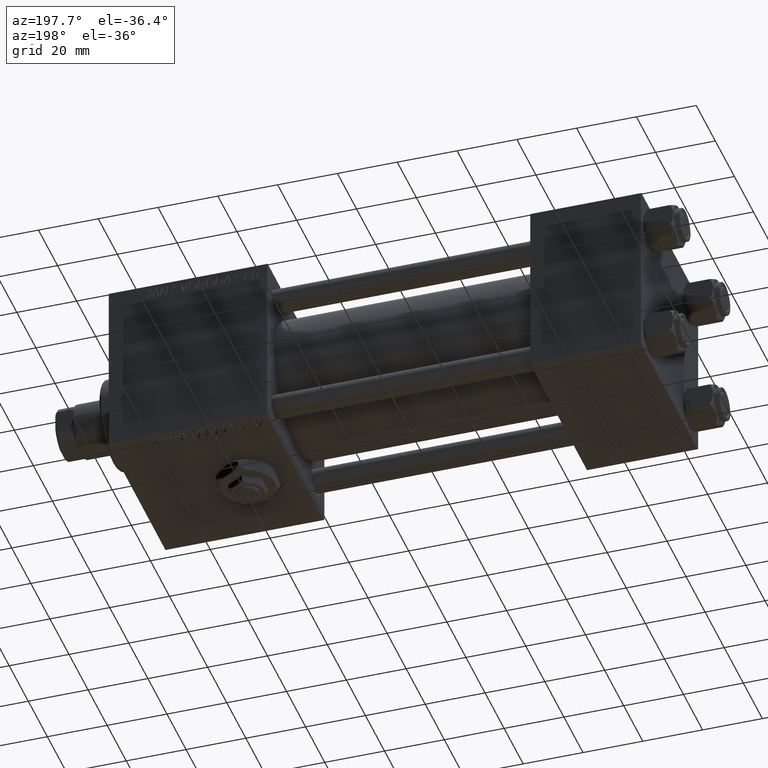
[diagram: clean part render]
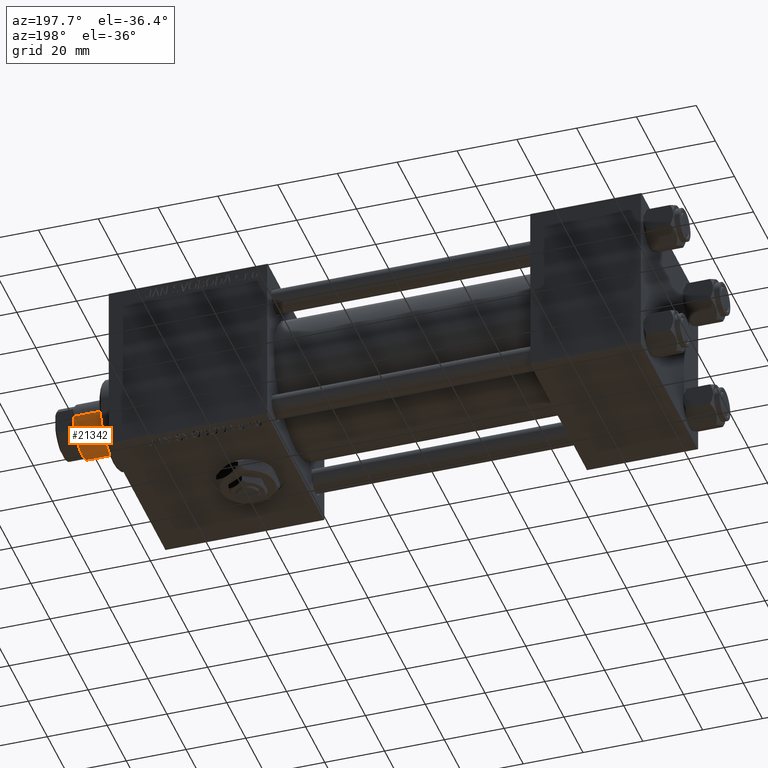
[diagram: same view with one face highlighted and labeled with its STEP entity id]
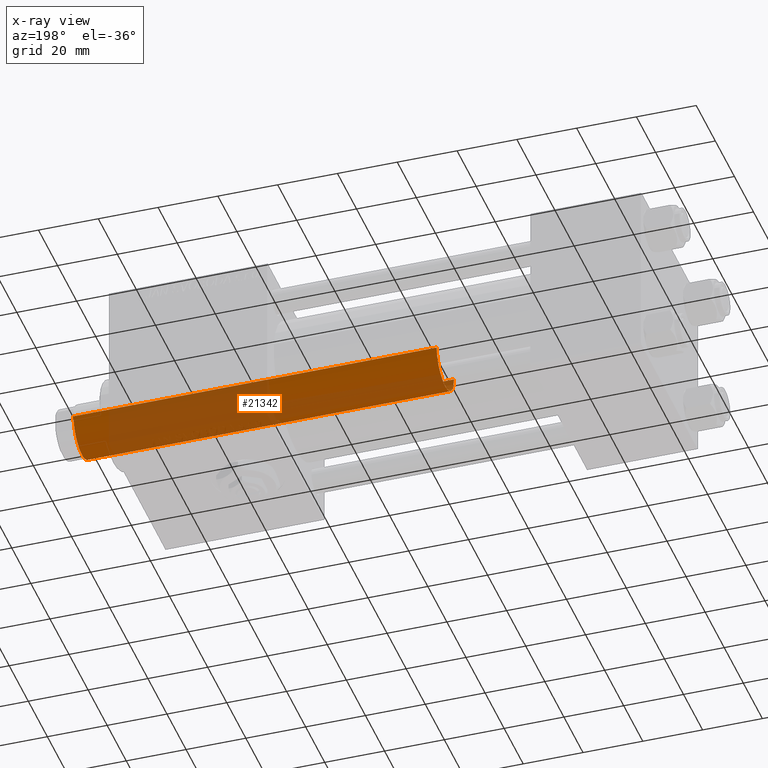
[diagram: x-ray of the same camera — body ghosted, the highlighted face saturated]
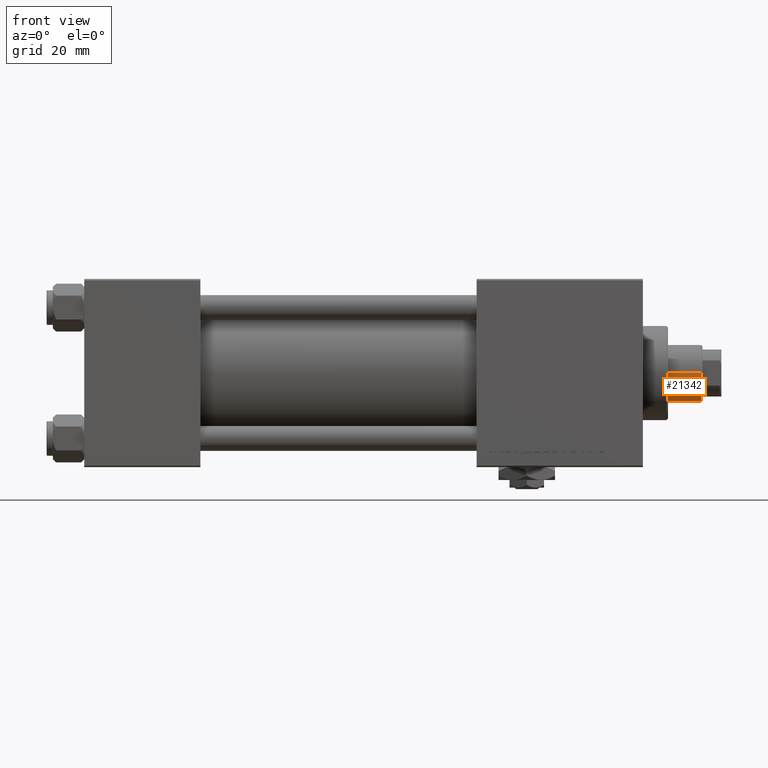
[diagram: same view with one face highlighted and labeled with its STEP entity id]
A machine part, auxiliary view. The second image highlights one B-rep face of the part: STEP entity #21342.
The next image is the same camera in x-ray: the body ghosted, the highlighted face saturated — about 61% of this face is hidden behind the body in this view.
A second angle (front view) of the same face is appended — the face is thin or edge-on in the first view.
In plain terms, the highlighted cylindrical surface (edge-blend (fillet) strip) has radius 9 mm, axis along (-1, 0, 0).
Its self-contained STEP definition (entity closure, byte-faithful):
#1111 = FACE_OUTER_BOUND ( 'NONE', #45981, .T. ) ;
#2707 = VECTOR ( 'NONE', #28354, 1000.000000000000000 ) ;
#3927 = LINE ( 'NONE', #12333, #2707 ) ;
#4051 = EDGE_CURVE ( 'NONE', #32767, #5959, #24956, .T. ) ;
#4171 = DIRECTION ( 'NONE',  ( 1.000000000000000000, 0.000000000000000000, 0.000000000000000000 ) ) ;
#4294 = CARTESIAN_POINT ( 'NONE',  ( 9.000000000000000000, 1.102182119232617517E-15, 159.5000000000000853 ) ) ;
#4611 = CARTESIAN_POINT ( 'NONE',  ( -9.000000000000000000, 0.000000000000000000, 159.5000000000000853 ) ) ;
#5953 = EDGE_CURVE ( 'NONE', #36616, #12888, #3927, .T. ) ;
#5959 = VERTEX_POINT ( 'NONE', #19947 ) ;
#11024 = VECTOR ( 'NONE', #25478, 1000.000000000000000 ) ;
#11806 = AXIS2_PLACEMENT_3D ( 'NONE', #21060, #48642, #17124 ) ;
#12055 = CARTESIAN_POINT ( 'NONE',  ( 0.000000000000000000, 0.000000000000000000, 159.5000000000000853 ) ) ;
#12333 = CARTESIAN_POINT ( 'NONE',  ( -9.000000000000000000, 0.000000000000000000, 160.0000000000000000 ) ) ;
#12888 = VERTEX_POINT ( 'NONE', #41158 ) ;
#12938 = CYLINDRICAL_SURFACE ( 'NONE', #11806, 9.000000000000000000 ) ;
#14381 = CIRCLE ( 'NONE', #22771, 9.000000000000000000 ) ;
#17124 = DIRECTION ( 'NONE',  ( -1.000000000000000000, 0.000000000000000000, 0.000000000000000000 ) ) ;
#17453 = ORIENTED_EDGE ( 'NONE', *, *, #22672, .T. ) ;
#19947 = CARTESIAN_POINT ( 'NONE',  ( 9.000000000000000000, 1.102182119232617517E-15, 38.00000000000000000 ) ) ;
#21060 = CARTESIAN_POINT ( 'NONE',  ( 0.000000000000000000, 0.000000000000000000, 160.0000000000000000 ) ) ;
#21342 = ADVANCED_FACE ( 'NONE', ( #1111 ), #12938, .T. ) ;
#22672 = EDGE_CURVE ( 'NONE', #5959, #12888, #14381, .T. ) ;
#22771 = AXIS2_PLACEMENT_3D ( 'NONE', #22792, #35388, #42496 ) ;
#22792 = CARTESIAN_POINT ( 'NONE',  ( 0.000000000000000000, 0.000000000000000000, 38.00000000000000000 ) ) ;
#24134 = DIRECTION ( 'NONE',  ( 0.000000000000000000, 0.000000000000000000, -1.000000000000000000 ) ) ;
#24956 = LINE ( 'NONE', #33098, #11024 ) ;
#25478 = DIRECTION ( 'NONE',  ( -0.000000000000000000, -0.000000000000000000, -1.000000000000000000 ) ) ;
#26154 = EDGE_CURVE ( 'NONE', #36616, #32767, #39642, .T. ) ;
#28354 = DIRECTION ( 'NONE',  ( -0.000000000000000000, -0.000000000000000000, -1.000000000000000000 ) ) ;
#32767 = VERTEX_POINT ( 'NONE', #4294 ) ;
#33098 = CARTESIAN_POINT ( 'NONE',  ( 9.000000000000000000, 1.102182119232617517E-15, 160.0000000000000000 ) ) ;
#35388 = DIRECTION ( 'NONE',  ( 0.000000000000000000, 0.000000000000000000, 1.000000000000000000 ) ) ;
#36616 = VERTEX_POINT ( 'NONE', #4611 ) ;
#37097 = ORIENTED_EDGE ( 'NONE', *, *, #26154, .T. ) ;
#39642 = CIRCLE ( 'NONE', #50536, 9.000000000000000000 ) ;
#41158 = CARTESIAN_POINT ( 'NONE',  ( -9.000000000000000000, 0.000000000000000000, 38.00000000000000000 ) ) ;
#42496 = DIRECTION ( 'NONE',  ( 1.000000000000000000, 0.000000000000000000, 0.000000000000000000 ) ) ;
#43247 = ORIENTED_EDGE ( 'NONE', *, *, #4051, .T. ) ;
#45981 = EDGE_LOOP ( 'NONE', ( #37097, #43247, #17453, #47551 ) ) ;
#47551 = ORIENTED_EDGE ( 'NONE', *, *, #5953, .F. ) ;
#48642 = DIRECTION ( 'NONE',  ( -0.000000000000000000, -0.000000000000000000, -1.000000000000000000 ) ) ;
#50536 = AXIS2_PLACEMENT_3D ( 'NONE', #12055, #24134, #4171 ) ;